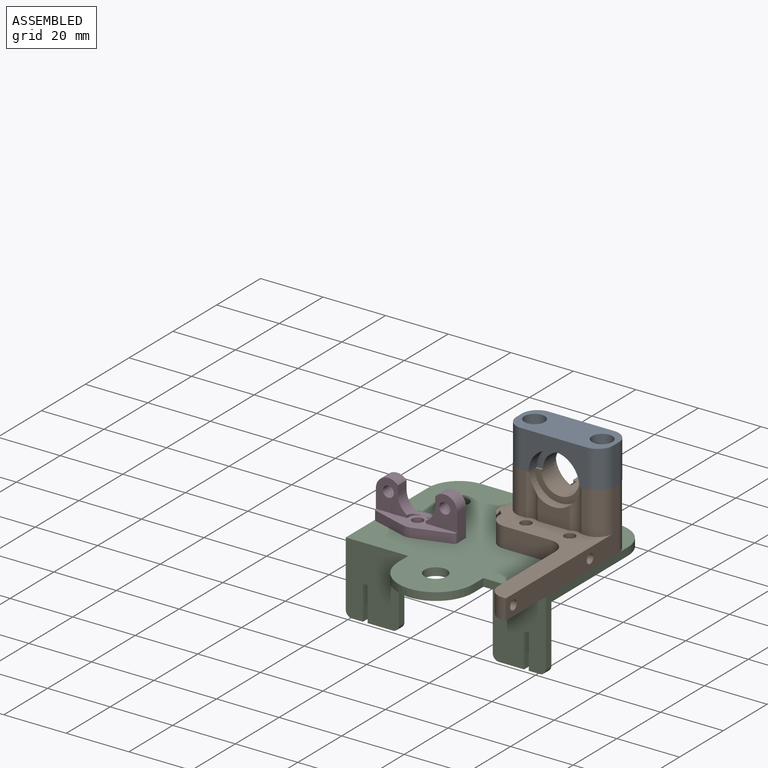
[diagram: assembled view]
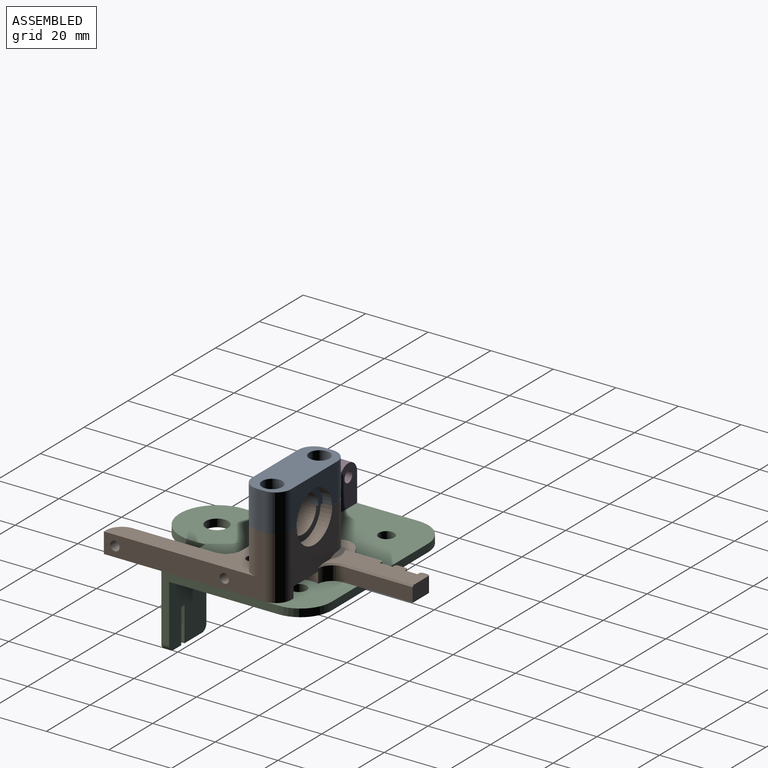
[diagram: assembled view, second angle]
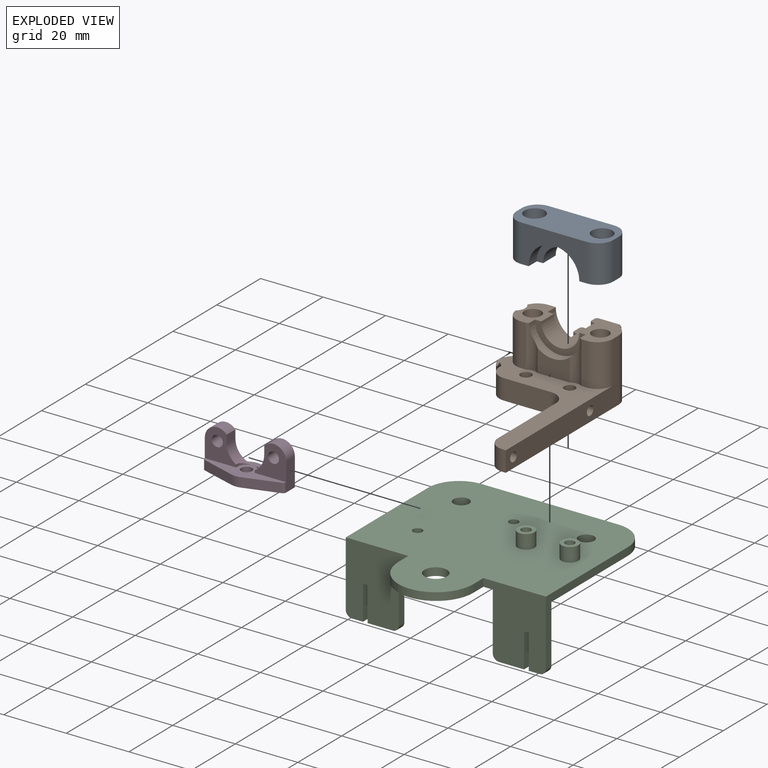
[diagram: exploded view]
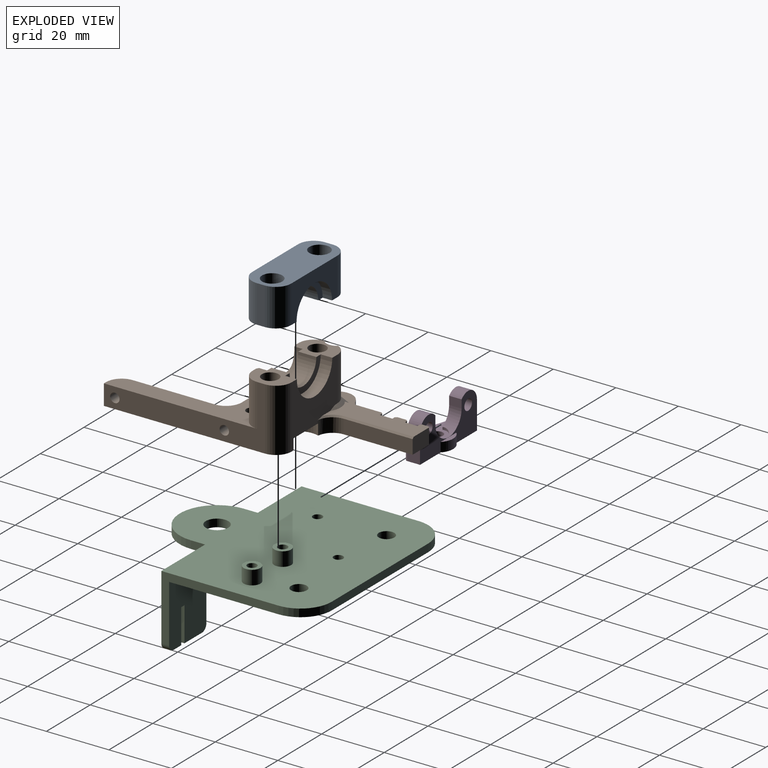
[diagram: exploded view, second angle]
ASSEMBLY  parts=4 mates=2
PART A: 22 faces, bbox 31x12x12.5 mm
  f0: cylinder r=1.75mm len=9mm, axis (0,-1,0), area 99mm2, adj f8,f16
  f1: cylinder r=1.75mm len=9mm, axis (0,-1,0), area 99mm2, adj f5,f15
  f2: plane 31x12.5mm, normal (0,1,0), area 299.7mm2, adj f6,f7,f9,f13,f14,f17,f18,f19
  f3: plane 16.2x8.1mm, normal (0,0,-1), area 44.6mm2, adj f5,f8,f11,f12
  f4: cylinder r=8.1mm len=16.2mm, axis (0,0,1), area 94.2mm2, adj f5,f8,f9,f10
  f5: plane 12.5x9.4mm, normal (0,-1,0), area 83.7mm2, adj f1,f3,f4,f6,f9,f10,f11,f12
  f6: plane 12x2.5mm, normal (1,0,0), area 30mm2, adj f2,f5,f18,f21
  f7: plane 12x2.5mm, normal (-1,0,0), area 30mm2, adj f2,f8,f19,f20
  f8: plane 12.5x9.4mm, normal (0,-1,0), area 83.7mm2, adj f0,f3,f4,f7,f9,f10,f11,f12
  f9: plane 21x12mm, normal (0,0,1), area 148.9mm2, adj f2,f4,f5,f8,f20,f21
  f10: plane 16.2x8.1mm, normal (0,0,1), area 44.6mm2, adj f4,f5,f8,f11
  f11: cylinder r=6.1mm len=12.2mm, axis (0,0,1), area 111.1mm2, adj f3,f5,f8,f10
  f12: cylinder r=8.1mm len=16.2mm, axis (0,0,1), area 76.3mm2, adj f3,f5,f8,f13
  f13: plane 21x12mm, normal (0,0,-1), area 148.9mm2, adj f2,f5,f8,f12,f18,f19
  f14: cylinder r=3.25mm len=6.5mm, axis (0,1,0), area 61.3mm2, adj f2,f15
  f15: plane 6.5x6.5mm, normal (0,1,0), area 23.6mm2, adj f1,f14
  f16: plane 6.5x6.5mm, normal (0,1,0), area 23.6mm2, adj f0,f17
  f17: cylinder r=3.25mm len=6.5mm, axis (0,1,0), area 61.3mm2, adj f2,f16
  f18: cylinder r=5mm len=12mm, axis (0,1,0), area 94.2mm2, adj f2,f5,f6,f13
  f19: cylinder r=5mm len=12mm, axis (0,-1,0), area 94.2mm2, adj f2,f7,f8,f13
  f20: cylinder r=5mm len=12mm, axis (0,-1,0), area 94.2mm2, adj f2,f7,f8,f9
  f21: cylinder r=5mm len=12mm, axis (0,1,0), area 94.2mm2, adj f2,f5,f6,f9
PART B: 72 faces, bbox 38.2x20.2x83.8 mm
  f0: plane 5x2mm, normal (-1,0,0), area 10mm2, adj f2,f52,f67,f68
  f1: plane 5x3mm, normal (-1,0,0), area 15mm2, adj f2,f52,f69,f70
  f2: plane 83.59x38mm, normal (0,1,0), area 953.5mm2, adj f0,f1,f3,f4,f7,f11,f18,f20
  f3: plane 21x20mm, normal (0,0,1), area 231.1mm2, adj f2,f5,f12,f13,f14,f32,f33,f34
  f4: plane 6.5x0.93mm, normal (-1,0,0), area 6mm2, adj f2,f24,f35,f38
  f5: cylinder r=5mm len=14mm, axis (0,-1,0), area 81mm2, adj f3,f12,f41,f54
  f6: cylinder r=5mm len=13.5mm, axis (0,1,0), area 103.1mm2, adj f12,f24,f29,f41
  f7: plane 51.5x20mm, normal (1,0,0), area 354.4mm2, adj f2,f13,f24,f34,f36,f43,f46,f47
  f8: cylinder r=1.75mm len=3.5mm, axis (0,1,0), area 16.5mm2, adj f21,f24
  f9: cylinder r=1.75mm len=3.5mm, axis (0,1,0), area 16.5mm2, adj f19,f24
  f10: cylinder r=8.1mm len=16.2mm, axis (0,0,-1), area 69.7mm2, adj f12,f13,f17,f22,f23,f30
  f11: plane 15x6.5mm, normal (0,0,-1), area 97.5mm2, adj f2,f24,f35,f44
  f12: plane 12.5x9.4mm, normal (0,-1,0), area 66.2mm2, adj f3,f5,f6,f10,f14,f15,f16,f17
  f13: plane 12.5x9.4mm, normal (0,-1,0), area 70.3mm2, adj f3,f7,f10,f14,f15,f16,f17,f23
  f14: cylinder r=8.1mm len=16.2mm, axis (0,0,-1), area 94.2mm2, adj f3,f12,f13,f15
  f15: plane 16.2x8.1mm, normal (0,0,1), area 44.6mm2, adj f12,f13,f14,f16
  f16: cylinder r=6.1mm len=12.2mm, axis (0,0,-1), area 111.1mm2, adj f12,f13,f15,f17
  f17: plane 16.2x8.1mm, normal (0,0,-1), area 44.6mm2, adj f10,f12,f13,f16
  f18: cylinder r=3.1mm len=6.2mm, axis (0,1,0), area 96.5mm2, adj f2,f19,f47,f48
  f19: plane 6.2x6.2mm, normal (0,1,0), area 20.6mm2, adj f9,f18
  f20: cylinder r=3.1mm len=6.2mm, axis (0,1,0), area 97.4mm2, adj f2,f21
  f21: plane 6.2x6.2mm, normal (0,1,0), area 20.6mm2, adj f8,f20
  f22: cylinder r=3.25mm len=13.5mm, axis (0,-1,0), area 40mm2, adj f10,f12,f24,f29,f30
  f23: cylinder r=3.25mm len=13.5mm, axis (0,-1,0), area 40mm2, adj f10,f13,f24,f30,f31
  f24: plane 49x32.5mm, normal (0,-1,0), area 452.7mm2, adj f4,f6,f7,f8,f9,f11,f22,f23
  f25: cylinder r=2.7mm len=5.4mm, axis (0,-1,0), area 67.9mm2, adj f13,f26
  f26: plane 5.4x5.4mm, normal (0,-1,0), area 22.9mm2, adj f25
  f27: cylinder r=2.7mm len=5.4mm, axis (0,-1,0), area 67.9mm2, adj f12,f28
  f28: plane 5.4x5.4mm, normal (0,-1,0), area 22.9mm2, adj f27
  f29: plane 13.5x1.63mm, normal (0,0,-1), area 22mm2, adj f6,f12,f22,f24
  f30: plane 10.27x7.23mm, normal (0,0,-1), area 61.4mm2, adj f10,f22,f23,f24
  f31: plane 13.5x1.63mm, normal (0,0,-1), area 22mm2, adj f13,f23,f24,f36
  f32: plane 12x8.19mm, normal (0,1,0), area 81.9mm2, adj f3,f33,f64
  f33: cylinder r=6mm len=12mm, axis (0,1,0), area 81.5mm2, adj f2,f3,f32,f64
  f34: cylinder r=5mm len=20mm, axis (0,1,0), area 157.1mm2, adj f2,f3,f7,f13
  f35: cylinder r=5mm len=6.5mm, axis (0,1,0), area 51.1mm2, adj f2,f4,f11,f24
  f36: cylinder r=5mm len=13.5mm, axis (0,-1,0), area 106mm2, adj f7,f13,f24,f31
  f37: cylinder r=5mm len=8.03mm, axis (0,1,0), area 28.5mm2, adj f2,f38,f40,f53
  f38: plane 6.5x5.54mm, normal (-0.71,0,-0.71), area 39.6mm2, adj f2,f4,f24,f37,f40,f55
  f39: cylinder r=1.75mm len=3.5mm, axis (0,1,0), area 33mm2, adj f2,f40
  f40: plane 17.55x8.42mm, normal (0,-1,0), area 48.5mm2, adj f37,f38,f39,f41,f50,f53,f54,f55
  f41: cylinder r=3.25mm len=17mm, axis (0,1,0), area 107.5mm2, adj f5,f6,f12,f24,f40,f54,f55
  f42: plane 26.34x6.5mm, normal (-1,0,0), area 171.2mm2, adj f2,f24,f44,f45
  f43: plane 6.5x1mm, normal (0,0,-1), area 6.5mm2, adj f2,f7,f24,f45
  f44: cylinder r=5mm len=6.5mm, axis (0,-1,0), area 51.1mm2, adj f2,f11,f24,f42
  f45: cylinder r=5mm len=6.5mm, axis (0,1,0), area 43.5mm2, adj f2,f24,f42,f43,f46
  f46: cylinder r=1.5mm len=6mm, axis (1,0,0), area 53.1mm2, adj f7,f45
  f47: cylinder r=1.5mm len=6mm, axis (1,0,0), area 56mm2, adj f7,f18,f48
  f48: plane 3x2.51mm, normal (1,0,0), area 6.3mm2, adj f18,f47
  f49: plane 22.09x4.5mm, normal (1,0,0), area 99.4mm2, adj f2,f51,f64,f65
  f50: plane 11.97x5.19mm, normal (-1,0,0), area 31mm2, adj f2,f40,f52,f53,f54,f71
  f51: plane 7.5x5mm, normal (0,0,1), area 37.4mm2, adj f2,f49,f52,f65,f67
  f52: plane 27.28x10.71mm, normal (0,-1,0), area 190.6mm2, adj f0,f1,f3,f50,f51,f54,f56,f57
  f53: cylinder r=10mm len=8.99mm, axis (0,1,0), area 33.5mm2, adj f2,f37,f40,f50
  f54: cone r=5mm half-angle=45deg, axis (0,1,0), area 23.5mm2, adj f3,f5,f40,f41,f50,f52
  f55: plane 6.32x3.5mm, normal (-0.71,-0.71,0), area 15.1mm2, adj f24,f38,f40,f41
  f56: plane 5x3mm, normal (0,0,-1), area 7mm2, adj f2,f52,f58,f62,f70
  f57: plane 5x3mm, normal (0,0,1), area 7mm2, adj f2,f52,f58,f62,f71
  f58: plane 4x3mm, normal (-1,0,0), area 12mm2, adj f52,f56,f57,f62
  f59: plane 5x3mm, normal (0,0,-1), area 7mm2, adj f2,f52,f61,f63,f68
  f60: plane 5x3mm, normal (0,0,1), area 7mm2, adj f2,f52,f61,f63,f69
  f61: plane 4x3mm, normal (-1,0,0), area 12mm2, adj f52,f59,f60,f63
  f62: plane 4x2mm, normal (-0.71,0.71,0), area 11.3mm2, adj f2,f56,f57,f58
  f63: plane 4x2mm, normal (-0.71,0.71,0), area 11.3mm2, adj f2,f59,f60,f61
  f64: cylinder r=5mm len=5mm, axis (0,-1,0), area 33.6mm2, adj f2,f3,f32,f33,f49,f66
  f65: plane 22.09x0.5mm, normal (0.71,-0.71,0), area 15.6mm2, adj f49,f51,f52,f66
  f66: cone r=5.5mm half-angle=45deg, axis (0,-1,0), area 4.7mm2, adj f3,f52,f64,f65
  f67: plane 5x0.5mm, normal (-0.71,0,0.71), area 3.5mm2, adj f0,f2,f51,f52
  f68: plane 5x0.5mm, normal (-0.71,0,-0.71), area 3.5mm2, adj f0,f2,f52,f59
  f69: plane 5x0.5mm, normal (-0.71,0,0.71), area 3.5mm2, adj f1,f2,f52,f60
  f70: plane 5x0.5mm, normal (-0.71,0,-0.71), area 3.5mm2, adj f1,f2,f52,f56
  f71: plane 5x0.5mm, normal (-0.71,0,0.71), area 3.5mm2, adj f2,f50,f52,f57
PART C: 45 faces, bbox 64x64x27.4 mm
  f0: plane 3.5x2.5mm, normal (0,0,-1), area 8.8mm2, adj f2,f22,f35,f40
  f1: plane 22.9x20mm, normal (0,-1,0), area 378.6mm2, adj f14,f16,f17,f21,f24,f25,f27,f34
  f2: plane 20.4x17mm, normal (0,1,0), area 328.6mm2, adj f0,f15,f16,f23,f28,f33,f35,f39
  f3: cylinder r=2.5mm len=5mm, axis (0,0,-1), area 39.3mm2, adj f16,f21
  f4: cylinder r=2.5mm len=5mm, axis (0,0,-1), area 39.3mm2, adj f16,f21
  f5: cylinder r=1.5mm len=4mm, axis (0,0,-1), area 37.7mm2, adj f21,f32
  f6: cylinder r=1.5mm len=4mm, axis (0,0,1), area 37.7mm2, adj f21,f31
  f7: cylinder r=1.5mm len=7mm, axis (0,0,1), area 66mm2, adj f16,f30
  f8: cylinder r=1.5mm len=7mm, axis (0,0,1), area 66mm2, adj f16,f29
  f9: cylinder r=3.6mm len=7.2mm, axis (0,0,1), area 56.5mm2, adj f16,f21
  f10: cylinder r=2mm len=4mm, axis (0,0,-1), area 18.8mm2, adj f16,f32
  f11: cylinder r=2mm len=4mm, axis (0,0,-1), area 18.8mm2, adj f16,f31
  f12: cylinder r=2.7mm len=5.4mm, axis (0,0,1), area 76.3mm2, adj f21,f30
  f13: cylinder r=2.7mm len=5.4mm, axis (0,0,1), area 76.3mm2, adj f21,f29
  f14: plane 8x2.5mm, normal (0,0,-1), area 20mm2, adj f1,f26,f36,f42
  f15: plane 8x2.5mm, normal (0,0,-1), area 20mm2, adj f2,f22,f33,f39
  f16: plane 64x64mm, normal (0,0,-1), area 3127mm2, adj f1,f2,f3,f4,f7,f8,f9,f10
  f17: plane 4.5x2.5mm, normal (1,0,0), area 11.3mm2, adj f1,f16,f19,f21
  f18: plane 4.5x2.5mm, normal (-1,0,0), area 11.3mm2, adj f16,f19,f21,f22
  f19: cylinder r=12mm len=24mm, axis (0,0,-1), area 94.2mm2, adj f16,f17,f18,f21
  f20: plane 44x2.5mm, normal (0,1,0), area 110mm2, adj f16,f21,f37,f38
  f21: plane 64x64mm, normal (0,0,1), area 3191.3mm2, adj f1,f3,f4,f5,f6,f9,f12,f13
  f22: plane 22.9x20mm, normal (0,-1,0), area 378.6mm2, adj f0,f15,f16,f18,f21,f23,f28,f33
  f23: plane 37.5x20.9mm, normal (-1,0,0), area 139.8mm2, adj f2,f16,f21,f22,f35,f38
  f24: plane 37.5x20.9mm, normal (1,0,0), area 139.7mm2, adj f1,f16,f21,f26,f34,f37
  f25: plane 18.4x2.5mm, normal (-1,0,0), area 46mm2, adj f1,f16,f26,f36
  f26: plane 20.4x17mm, normal (0,1,0), area 328.6mm2, adj f14,f16,f24,f25,f27,f34,f36,f42
  f27: plane 3.5x2.5mm, normal (0,0,-1), area 8.8mm2, adj f1,f26,f34,f43
  f28: plane 18.4x2.5mm, normal (1,0,0), area 46mm2, adj f2,f16,f22,f33
  f29: plane 5.4x5.4mm, normal (0,0,1), area 15.8mm2, adj f8,f13
  f30: plane 5.4x5.4mm, normal (0,0,1), area 15.8mm2, adj f7,f12
  f31: plane 4x4mm, normal (0,0,-1), area 5.5mm2, adj f6,f11
  f32: plane 4x4mm, normal (0,0,-1), area 5.5mm2, adj f5,f10
  f33: cylinder r=2mm len=2.5mm, axis (0,-1,0), area 7.9mm2, adj f2,f15,f22,f28
  f34: cylinder r=2mm len=2.5mm, axis (0,-1,0), area 7.9mm2, adj f1,f24,f26,f27
  f35: cylinder r=2mm len=2.5mm, axis (0,1,0), area 7.9mm2, adj f0,f2,f22,f23
  f36: cylinder r=2mm len=2.5mm, axis (0,1,0), area 7.9mm2, adj f1,f14,f25,f26
  f37: cylinder r=10mm len=10mm, axis (0,0,-1), area 39.3mm2, adj f16,f20,f21,f24
  f38: cylinder r=10mm len=10mm, axis (0,0,1), area 39.3mm2, adj f16,f20,f21,f23
  f39: plane 11x2.5mm, normal (-1,0,0), area 27.5mm2, adj f2,f15,f22,f41
  f40: plane 11x2.5mm, normal (1,0,0), area 27.5mm2, adj f0,f2,f22,f41
  f41: plane 2.5x1.5mm, normal (0,0,-1), area 3.7mm2, adj f2,f22,f39,f40
  f42: plane 11x2.5mm, normal (1,0,0), area 27.5mm2, adj f1,f14,f26,f44
  f43: plane 11x2.5mm, normal (-1,0,0), area 27.5mm2, adj f1,f26,f27,f44
  f44: plane 2.5x1.5mm, normal (0,0,-1), area 3.7mm2, adj f1,f26,f42,f43
PART D: 25 faces, bbox 26x13x10 mm
  f0: cylinder r=6mm len=12mm, axis (0,0,1), area 57.6mm2, adj f1,f2,f9,f11,f18,f20,f23,f24
  f1: plane 10.04x10mm, normal (0,0,-1), area 62.7mm2, adj f0,f4,f12,f17,f18,f19,f23
  f2: plane 10.04x10mm, normal (0,0,-1), area 62.7mm2, adj f0,f4,f8,f20,f21,f22,f24
  f3: cylinder r=1.75mm len=3.5mm, axis (0,1,0), area 33mm2, adj f4,f16
  f4: plane 26x8mm, normal (0,-1,0), area 78.2mm2, adj f1,f2,f3,f6,f7,f13,f14,f15
  f5: plane 7.14x1.5mm, normal (0,-1,0), area 7.4mm2, adj f9,f10,f11
  f6: plane 10.83x3.32mm, normal (0.29,0,-0.96), area 34mm2, adj f4,f7,f15,f16
  f7: cylinder r=1mm len=3mm, axis (0,1,0), area 3.8mm2, adj f4,f6,f8,f16
  f8: plane 9x4mm, normal (1,0,0), area 36mm2, adj f2,f7,f9,f16,f21
  f9: plane 13x13mm, normal (0,0,1), area 91.7mm2, adj f0,f5,f8,f10,f16,f20,f21,f22
  f10: cylinder r=5mm len=7.14mm, axis (0,1,0), area 23.9mm2, adj f5,f9,f11,f16
  f11: plane 13x13mm, normal (0,0,1), area 91.7mm2, adj f0,f5,f10,f12,f16,f17,f18,f19
  f12: plane 9x4mm, normal (-1,0,0), area 36mm2, adj f1,f11,f13,f16,f17
  f13: cylinder r=1mm len=3mm, axis (0,1,0), area 3.8mm2, adj f4,f12,f14,f16
  f14: plane 10.83x3.32mm, normal (-0.29,0,-0.96), area 34mm2, adj f4,f13,f15,f16
  f15: cylinder r=5mm len=3mm, axis (0,1,0), area 8.9mm2, adj f4,f6,f14,f16
  f16: plane 26x10mm, normal (0,1,0), area 172.4mm2, adj f3,f6,f7,f8,f9,f10,f11,f12
  f17: cylinder r=4mm len=7mm, axis (0,0,1), area 38.7mm2, adj f1,f11,f12,f18
  f18: plane 4x2.65mm, normal (1,0,0), area 10.6mm2, adj f0,f1,f11,f17
  f19: cylinder r=1.75mm len=4mm, axis (0,0,1), area 44mm2, adj f1,f11
  f20: plane 4x2.65mm, normal (-1,0,0), area 10.6mm2, adj f0,f2,f9,f21
  f21: cylinder r=4mm len=7mm, axis (0,0,1), area 38.7mm2, adj f2,f8,f9,f20
  f22: cylinder r=1.75mm len=4mm, axis (0,0,1), area 44mm2, adj f2,f9
  f23: cylinder r=3mm len=3.5mm, axis (0,1,0), area 2.3mm2, adj f0,f1,f4
  f24: cylinder r=3mm len=3.5mm, axis (0,1,0), area 2.3mm2, adj f0,f2,f4
PLACE A rot(axis=(1,0,0),90deg) t=(9.31,3.67,26.44)mm
PLACE B rot(axis=(-1,0,0),90deg) t=(2.21,1.02,6.44)mm
PLACE C t=(-7.31,-6.47,3.94)mm
PLACE D rot(axis=(-1,0,0),90deg) t=(-26.33,-7.68,6.44)mm
MATE planar A.f5 <-> B.f13  axis (0,0,-1) through (20.24,9.93,26.44)mm
MATE planar D.f16 <-> C.f21  axis (0,0,-1) through (-19.45,-10.8,6.44)mm
